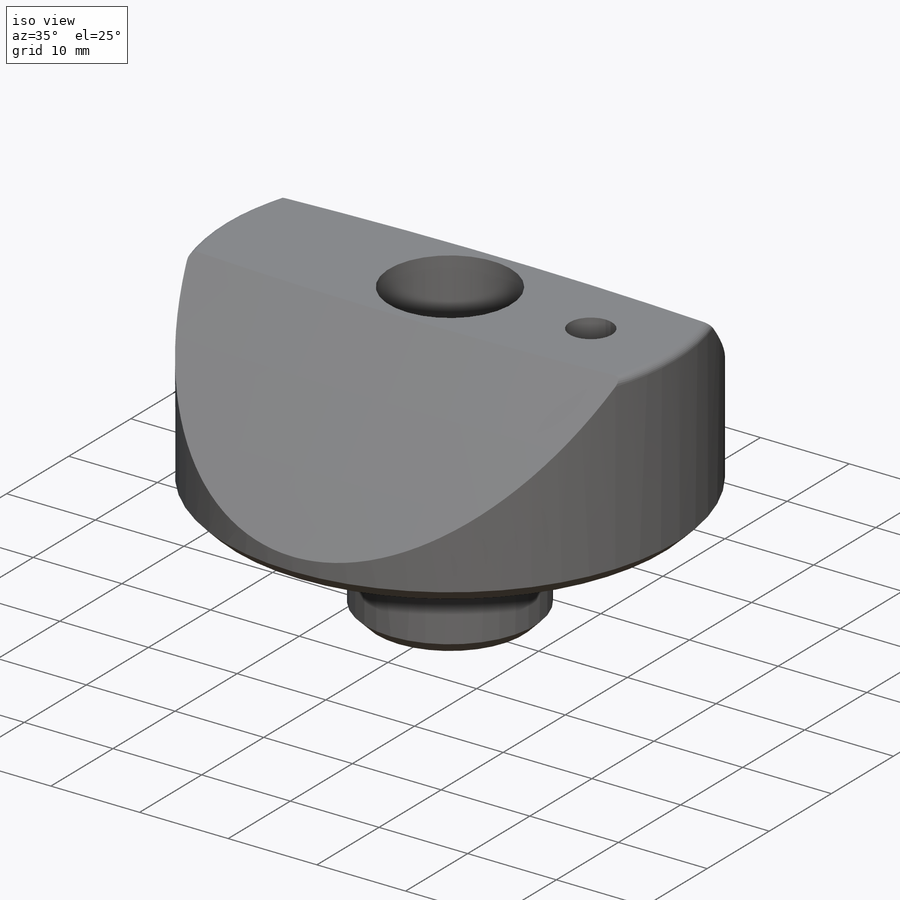
[diagram: iso view]
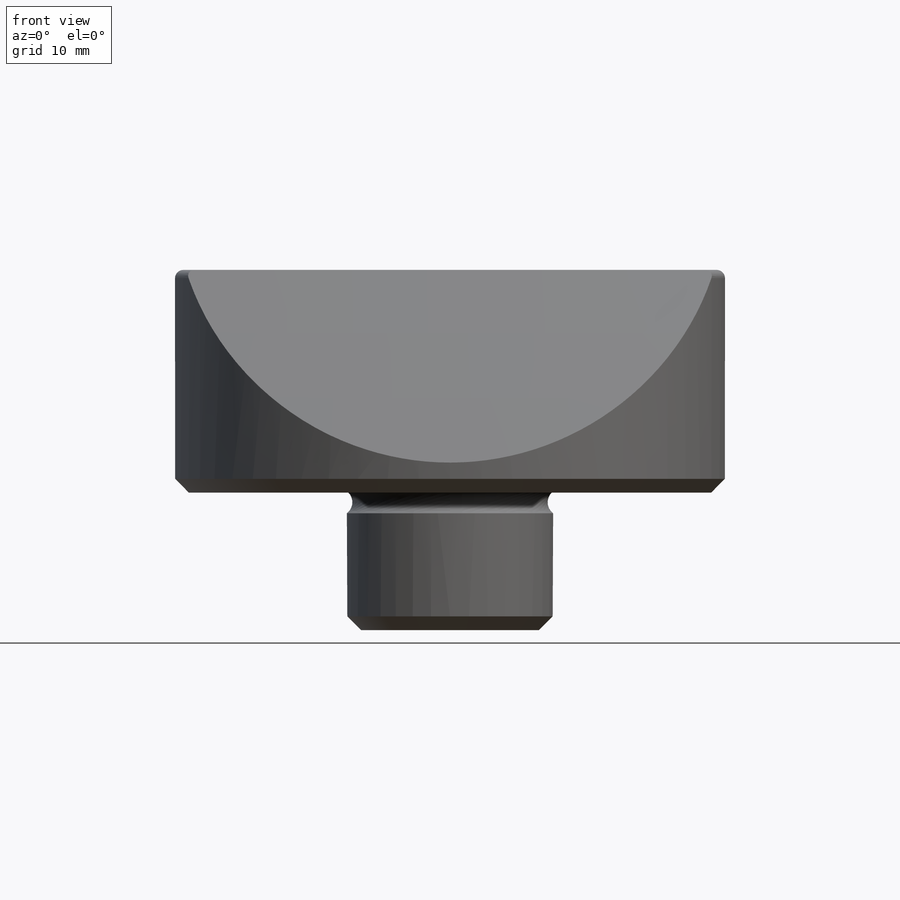
[diagram: front view]
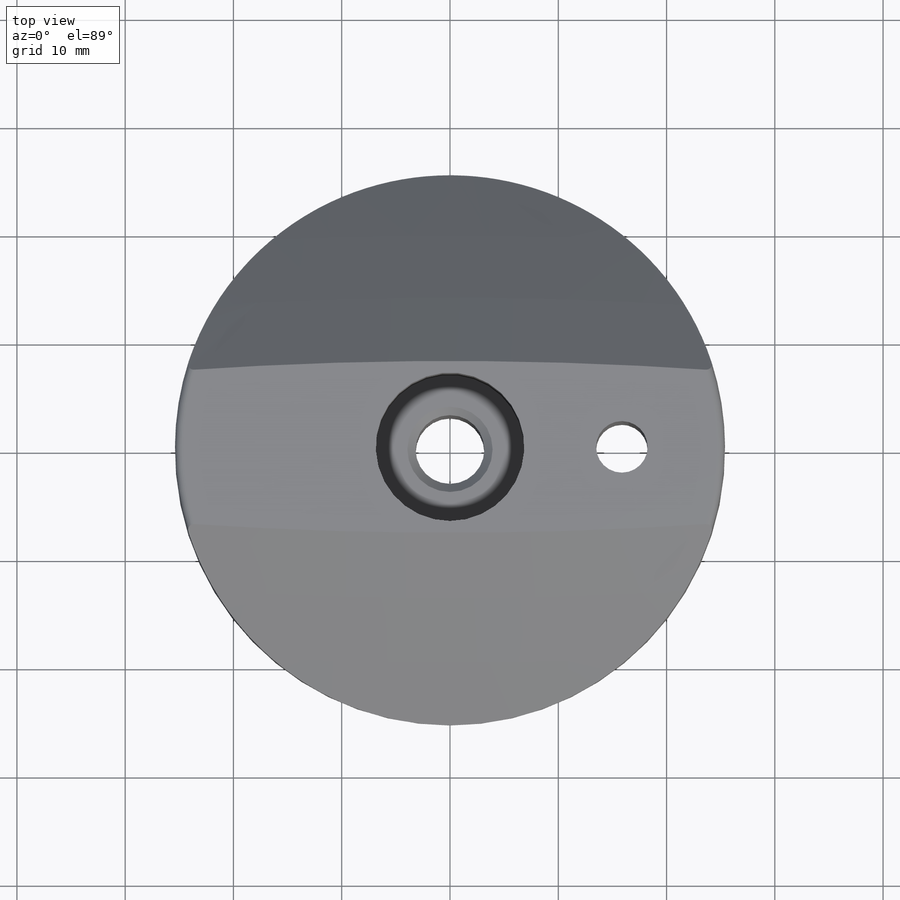
[diagram: top view]
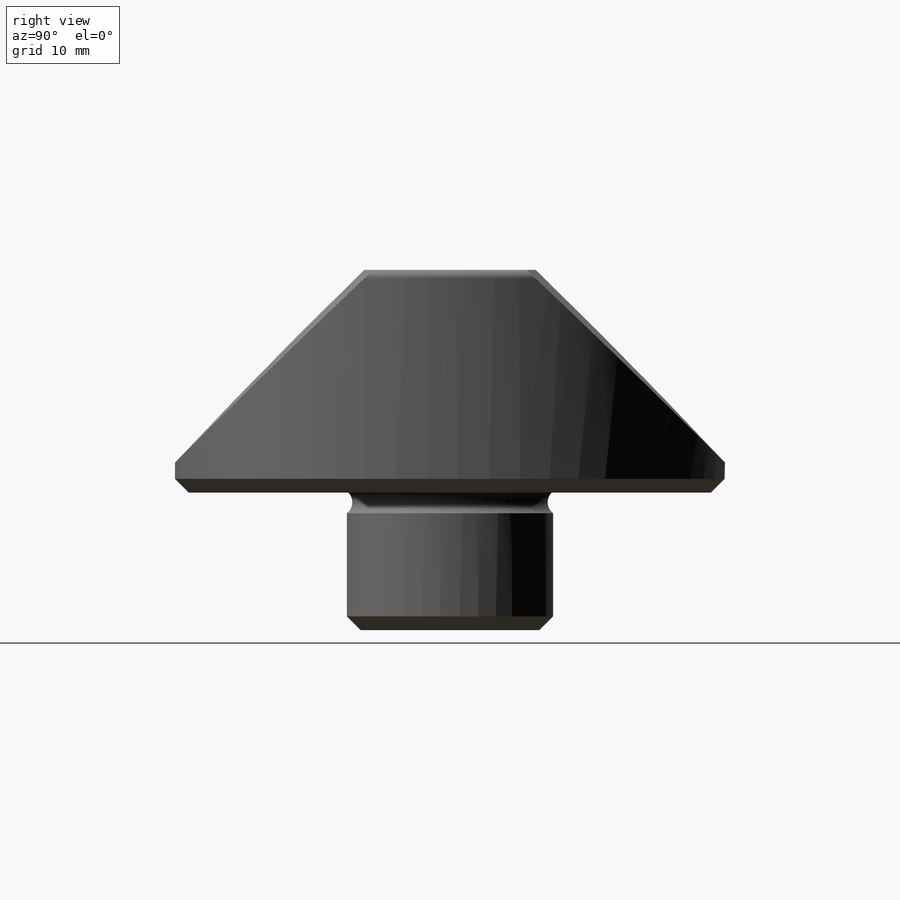
[diagram: right view]
SOLIDWORKS PART (.sldprt)
format: sldprt  version: not decoded by parser v0  size: 386,560 bytes
history: native  units: mm
features: sketch x6, plane x3, mirror x3, cut_extrude x2, chamfer x2, material x1, surface_op x1, cut_revolve x1, fillet x1 + 2 further entries (+9 scaffold rows collapsed)
feature tree (31):
  scaffold x9  (default folders/planes/origin — collapsed)
  material  "440C Rc 58"
  plane  "Plane X-Y"
  plane  "Plane X-Z"
  plane  "Plane Y-Z"
  "Axis - Y"
  "Axis - Z"
  sketch  "Sketch1"  dims[c1.D1=50.8mm c1.D2=20.574mm c1.D3=19.05mm c1.D4=12.7mm c1.D5=13.716mm c1.D6=13.208mm c1.D7=6.35mm c2.D1=360.0deg]
  sketch  "Sketch2"  dims[D1=15.875mm]
  surface_op  "Surface-Extrude1"
  sketch  "Sketch3"  dims[c1.D1=500.0mm c1.D14=38.1mm c1.D15=31.75mm c1.D2=~340.074622mm c1.D3=~338.440391mm c1.D4=25.4mm c1.D5=~2.775524mm c1.D6=25.4mm c1.D7=~15.260384mm c2.D7=45.0deg c2.D8=41.275mm c2.D9=13.716mm c2.D10=18.288mm c2.D11=32.385mm c2.D12=~349.547573mm c3.D12=45.0deg c3.D9=~11.209537mm c3.D13=7.874mm c3.D15=58.674mm c3.D1=9.0deg]
  mirror  "Mirror1"
  mirror  "Surface-Trim2"
  mirror  "Surface-Trim3"
  sketch  "Sketch4"  dims[D1=4.7625mm D2=15.875mm]
  cut_extrude  "Cut-Extrude1"  [1 undecoded]
  sketch  "Sketch5"  dims[D1=2.54mm D2=18.034mm D3=0.381mm]
  cut_revolve  "Cut-Revolve1"  Angle=360deg
  chamfer  "Chamfer1"  Distance=1.27mm Angle=45deg
  fillet  "Fillet1"  Radius=0.762mm
  chamfer  "Chamfer2"  Distance=0.762mm Angle=45deg
  sketch  "Sketch6"  dims[D1=32.893mm D2=39.878mm D3=3.4925mm]
  cut_extrude  "Cut-Extrude2"  Depth=0.0762mm
decode coverage: 11 of 16 modeling features carry decoded parameters; 2 rows unclassified (native names shown)
note: ~ marks probable driven/reference dimensions
note: 1 parameter value undecoded
note: suppression state not decoded; provenance and decode notes live in map.json
